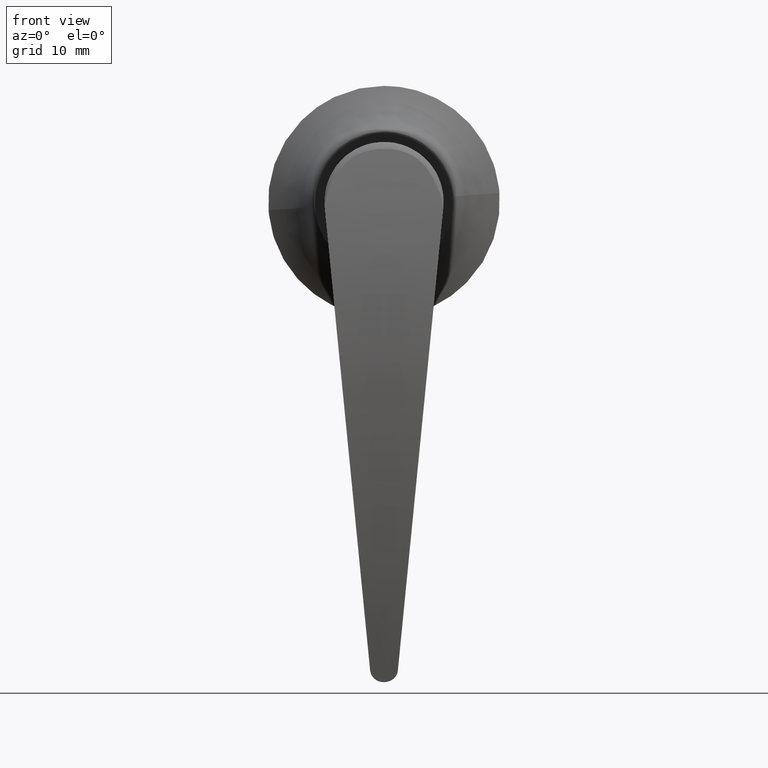
[diagram: clean part render]
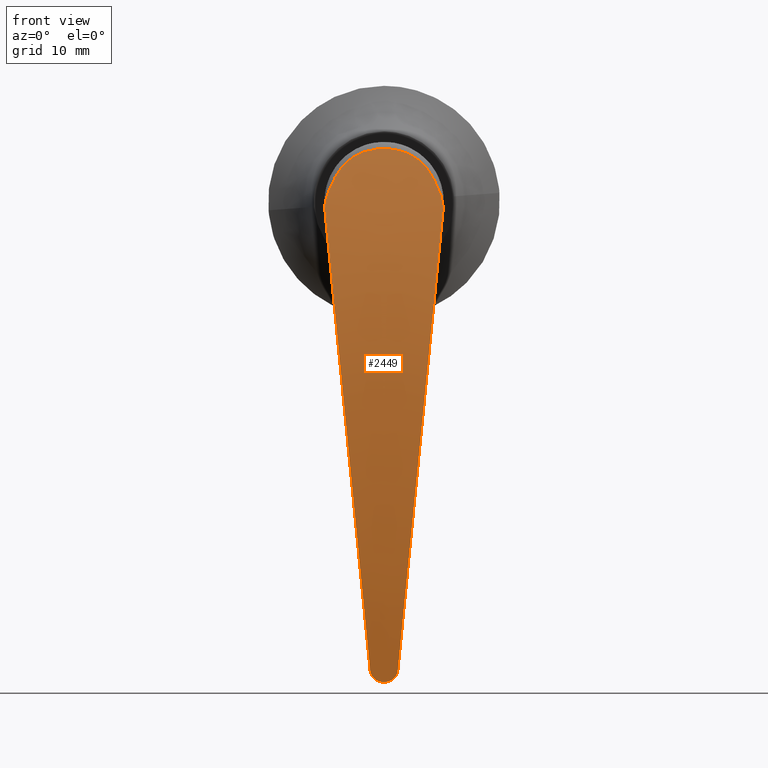
[diagram: same view with one face highlighted and labeled with its STEP entity id]
A machine part, front view. The second image highlights one B-rep face of the part: STEP entity #2449.
In plain terms, the highlighted face is a freeform B-spline surface patch.
Its self-contained STEP definition (entity closure, byte-faithful):
#1877=CARTESIAN_POINT('',(-8.464671061967419,-24.302046395629901,-0.774365080495115));
#1878=VERTEX_POINT('',#1877);
#1919=CARTESIAN_POINT('',(8.459299963339769,-24.314094698093101,-0.831000373267871));
#1920=VERTEX_POINT('',#1919);
#1921=CARTESIAN_POINT('',(8.459299963339779,-24.314094698093040,-0.831000373267865));
#1922=CARTESIAN_POINT('',(8.458411691496904,-24.311575122384170,-0.819146599249248));
#1923=CARTESIAN_POINT('',(8.456632368058438,-24.306528086220940,-0.795401956080829));
#1924=CARTESIAN_POINT('',(8.453690252281072,-24.298934511043100,-0.759752262363911));
#1925=CARTESIAN_POINT('',(8.450542905953103,-24.291309100233072,-0.724008692006169));
#1926=CARTESIAN_POINT('',(8.447170551477443,-24.283650930729920,-0.688172870250530));
#1927=CARTESIAN_POINT('',(8.443578127624631,-24.275960115001389,-0.652244392714695));
#1928=CARTESIAN_POINT('',(8.439763917117162,-24.268236486209300,-0.616223401620088));
#1929=CARTESIAN_POINT('',(8.435727992858435,-24.260479952194171,-0.580109892208347));
#1930=CARTESIAN_POINT('',(8.431469943919586,-24.252690400169261,-0.543903899478592));
#1931=CARTESIAN_POINT('',(8.426989487803875,-24.244867722379801,-0.507605447910497));
#1932=CARTESIAN_POINT('',(8.422286305593520,-24.237011809192911,-0.471214565002356));
#1933=CARTESIAN_POINT('',(8.417360086339302,-24.229122550957140,-0.434731277626651));
#1934=CARTESIAN_POINT('',(8.412210515108484,-24.221199837500290,-0.398155613012325));
#1935=CARTESIAN_POINT('',(8.406837276204058,-24.213243558263461,-0.361487598481028));
#1936=CARTESIAN_POINT('',(8.401240052299322,-24.205253602263880,-0.324727261519402));
#1937=CARTESIAN_POINT('',(8.395418524669248,-24.197229858103078,-0.287874629759125));
#1938=CARTESIAN_POINT('',(8.389372373138777,-24.189172213965289,-0.250929730988340));
#1939=CARTESIAN_POINT('',(8.383101276061145,-24.181080557609832,-0.213892593130009));
#1940=CARTESIAN_POINT('',(8.376604910461623,-24.172954776397319,-0.176763244321687));
#1941=CARTESIAN_POINT('',(8.369882951485648,-24.164794757185899,-0.139541712620821));
#1942=CARTESIAN_POINT('',(8.362935074477273,-24.156600386716200,-0.102228027113332));
#1943=CARTESIAN_POINT('',(8.355760947183363,-24.148371550161770,-0.064822213758062));
#1944=CARTESIAN_POINT('',(8.348360259005428,-24.140108136562500,-0.027324310977246));
#1945=CARTESIAN_POINT('',(8.340732611177749,-24.131810018352489,0.010265689203754));
#1946=CARTESIAN_POINT('',(8.321281617131538,-24.111174814684428,0.103579587259843));
#1947=CARTESIAN_POINT('',(8.287286778060645,-24.077764204406598,0.253826418508463));
#1948=CARTESIAN_POINT('',(8.234256346180372,-24.031112806224900,0.461705095016636));
#1949=CARTESIAN_POINT('',(8.174301861232600,-23.983164262304118,0.673445216869652));
#1950=CARTESIAN_POINT('',(8.089241658201743,-23.920585822086711,0.947348329087076));
#1951=CARTESIAN_POINT('',(7.970971477887364,-23.841924623933270,1.287459388776844));
#1952=CARTESIAN_POINT('',(7.842365110277219,-23.764690902087072,1.616410807461109));
#1953=CARTESIAN_POINT('',(7.731427425007401,-23.702079630692179,1.880321551242589));
#1954=CARTESIAN_POINT('',(7.620144194872872,-23.641457175207449,2.134189301109605));
#1955=CARTESIAN_POINT('',(7.475490078562974,-23.566089359589231,2.446870914185568));
#1956=CARTESIAN_POINT('',(7.329484134776391,-23.492819076650459,2.747448000123776));
#1957=CARTESIAN_POINT('',(7.209099636098563,-23.433401869849749,2.989376334259918));
#1958=CARTESIAN_POINT('',(7.137549114356703,-23.398324208522219,3.131496300447547));
#1959=CARTESIAN_POINT('',(7.080059384161454,-23.370223266887969,3.244956711865966));
#1960=CARTESIAN_POINT('',(7.044254360224246,-23.352737837066901,3.315424370657823));
#1961=CARTESIAN_POINT('',(7.012753607000596,-23.337367571503862,3.377252594117639));
#1962=CARTESIAN_POINT('',(6.984620706433557,-23.323662862865429,3.432306357448358));
#1963=CARTESIAN_POINT('',(6.959281567122982,-23.311442527781370,3.481337552885001));
#1964=CARTESIAN_POINT('',(6.924848712335746,-23.295104340354619,3.546804125643295));
#1965=CARTESIAN_POINT('',(6.883918226516429,-23.276170830294291,3.622541649706123));
#1966=CARTESIAN_POINT('',(6.834780780334524,-23.254047044575149,3.710853715666563));
#1967=CARTESIAN_POINT('',(6.784493742246850,-23.232031646893489,3.798552149009215));
#1968=CARTESIAN_POINT('',(6.681641192487474,-23.188213765184731,3.972751071742376));
#1969=CARTESIAN_POINT('',(6.519085005845323,-23.123449282763769,4.228958150311113));
#1970=CARTESIAN_POINT('',(6.285383609650068,-23.039643980599500,4.558194057719937));
#1971=CARTESIAN_POINT('',(6.035687457408742,-22.958762776241620,4.874003177979358));
#1972=CARTESIAN_POINT('',(5.770267965307534,-22.880964750990952,5.176149115604660));
#1973=CARTESIAN_POINT('',(5.489399238258570,-22.806410993627530,5.464341760382415));
#1974=CARTESIAN_POINT('',(5.192762990143693,-22.735185303545681,5.738555079209068));
#1975=CARTESIAN_POINT('',(4.881890525335344,-22.667772211113490,5.997185517328003));
#1976=CARTESIAN_POINT('',(4.611358593531225,-22.615026554027811,6.198945194061772));
#1977=CARTESIAN_POINT('',(4.389487806451990,-22.575190618605951,6.351045098461867));
#1978=CARTESIAN_POINT('',(4.247794728838668,-22.551153697416339,6.442718175834238));
#1979=CARTESIAN_POINT('',(4.133890052077800,-22.532631395188819,6.513304835463315));
#1980=CARTESIAN_POINT('',(4.019139613256521,-22.514555332488570,6.582157219878405));
#1981=CARTESIAN_POINT('',(3.817250840994292,-22.484575424312130,6.696271982382317));
#1982=CARTESIAN_POINT('',(3.517486485231421,-22.445074643194129,6.846436580533600));
#1983=CARTESIAN_POINT('',(3.147207307088030,-22.403751121470350,7.003325443718985));
#1984=CARTESIAN_POINT('',(2.765589566593091,-22.368009857379739,7.138882529892252));
#1985=CARTESIAN_POINT('',(2.252323337383046,-22.328416784933921,7.288929027416774));
#1986=CARTESIAN_POINT('',(1.730962041582074,-22.299915813882400,7.396836355696955));
#1987=CARTESIAN_POINT('',(1.206193152671715,-22.281015212063370,7.468369240720851));
#1988=CARTESIAN_POINT('',(0.813572262162764,-22.271305166912729,7.505110319255011));
#1989=CARTESIAN_POINT('',(0.415566430174570,-22.265580889209058,7.526767212696905));
#1990=CARTESIAN_POINT('',(0.017296626021364,-22.263614459641900,7.534206375157171));
#1991=CARTESIAN_POINT('',(-0.379865712700055,-22.265074380656500,7.528683394201169));
#1992=CARTESIAN_POINT('',(-0.775788730633699,-22.270193285531629,7.509317123311621));
#1993=CARTESIAN_POINT('',(-1.167146330202244,-22.279282754895512,7.474924951950704));
#1994=CARTESIAN_POINT('',(-1.562439502112025,-22.292938646870539,7.423244051838846));
#1995=CARTESIAN_POINT('',(-1.953969139995402,-22.311397304979710,7.353366102204670));
#1996=CARTESIAN_POINT('',(-2.346534878103340,-22.335305106329489,7.262820694376311));
#1997=CARTESIAN_POINT('',(-2.731313740318662,-22.364420039601491,7.152490876519529));
#1998=CARTESIAN_POINT('',(-3.111476143873492,-22.399358139878171,7.019993262109874));
#1999=CARTESIAN_POINT('',(-3.480603947866617,-22.439898230298851,6.866099358947480));
#2000=CARTESIAN_POINT('',(-3.780546770604659,-22.478869142867762,6.717974276547948));
#2001=CARTESIAN_POINT('',(-3.983002633328487,-22.508548156508240,6.605027395401744));
#2002=CARTESIAN_POINT('',(-4.098530285889127,-22.526524451612190,6.536569574681659));
#2003=CARTESIAN_POINT('',(-4.213483335342295,-22.544996682603159,6.466189243367184));
#2004=CARTESIAN_POINT('',(-4.356689432731659,-22.569020557218540,6.374587123694274));
#2005=CARTESIAN_POINT('',(-4.579916094080739,-22.608693196178489,6.223147599849050));
#2006=CARTESIAN_POINT('',(-4.851169982347170,-22.661022586016951,6.023034729808120));
#2007=CARTESIAN_POINT('',(-5.162288250235594,-22.727727391476449,5.767207305995151));
#2008=CARTESIAN_POINT('',(-5.459158276605393,-22.798205885208208,5.495982384673358));
#2009=CARTESIAN_POINT('',(-5.772743114644800,-22.880504236095842,5.178010495614414));
#2010=CARTESIAN_POINT('',(-6.096677488803498,-22.975967362801740,4.807202023407669));
#2011=CARTESIAN_POINT('',(-6.421945075208600,-23.085652182780290,4.377995503893909));
#2012=CARTESIAN_POINT('',(-6.655370314342915,-23.176007564964031,4.021312111375029));
#2013=CARTESIAN_POINT('',(-6.814845872932678,-23.244022361292458,3.750897119855118));
#2014=CARTESIAN_POINT('',(-6.888699726604290,-23.277262217721709,3.618205181877658));
#2015=CARTESIAN_POINT('',(-6.938269281762931,-23.300448821510660,3.525393558680244));
#2016=CARTESIAN_POINT('',(-6.962778079310710,-23.312096708743749,3.478711547535899));
#2017=CARTESIAN_POINT('',(-6.989783476588665,-23.325061482901528,3.426692133152358));
#2018=CARTESIAN_POINT('',(-7.021847704615945,-23.340488701816401,3.364713931769756));
#2019=CARTESIAN_POINT('',(-7.059039005233410,-23.358398833595569,3.292626728043821));
#2020=CARTESIAN_POINT('',(-7.118903124062483,-23.387253844220719,3.176258276966208));
#2021=CARTESIAN_POINT('',(-7.191867383426299,-23.422534944705632,3.033481466743566));
#2022=CARTESIAN_POINT('',(-7.284408765317258,-23.467592172862989,2.850248707071766));
#2023=CARTESIAN_POINT('',(-7.372020821196017,-23.510760405271331,2.673824220260483));
#2024=CARTESIAN_POINT('',(-7.462620805308629,-23.556077182726881,2.487627403581026));
#2025=CARTESIAN_POINT('',(-7.549719024973610,-23.600523498131320,2.303988801461136));
#2026=CARTESIAN_POINT('',(-7.636970364948101,-23.646165020499492,2.114301015718084));
#2027=CARTESIAN_POINT('',(-7.720942403924699,-23.691434738845860,1.925008563758541));
#2028=CARTESIAN_POINT('',(-7.833408267979425,-23.754060996965709,1.661441564495187));
#2029=CARTESIAN_POINT('',(-7.964033986827551,-23.831098942310291,1.333849858347459));
#2030=CARTESIAN_POINT('',(-8.084045934036169,-23.909310027056069,0.996307084826468));
#2031=CARTESIAN_POINT('',(-8.170362495740678,-23.971451519142001,0.724877922577580));
#2032=CARTESIAN_POINT('',(-8.231540027367856,-24.019241660314378,0.514299018594144));
#2033=CARTESIAN_POINT('',(-8.285793303214767,-24.065761683348889,0.307484840492434));
#2034=CARTESIAN_POINT('',(-8.323146912724448,-24.101441094398481,0.147425695748882));
#2035=CARTESIAN_POINT('',(-8.347445896355962,-24.126694079675620,0.033433862524267));
#2036=CARTESIAN_POINT('',(-8.361439558070687,-24.141926568419318,-0.035544741385872));
#2037=CARTESIAN_POINT('',(-8.374659909636836,-24.157043716961720,-0.104219635027526));
#2038=CARTESIAN_POINT('',(-8.387109169808831,-24.172046287970499,-0.172590741451703));
#2039=CARTESIAN_POINT('',(-8.398789319017343,-24.186934952945979,-0.240657863242870));
#2040=CARTESIAN_POINT('',(-8.409702411011427,-24.201710402728381,-0.308420833327073));
#2041=CARTESIAN_POINT('',(-8.419850345572201,-24.216373312543801,-0.375879488670505));
#2042=CARTESIAN_POINT('',(-8.429235464091891,-24.230924372983161,-0.443033629950745));
#2043=CARTESIAN_POINT('',(-8.437858412005603,-24.245364201666241,-0.509883207237275));
#2044=CARTESIAN_POINT('',(-8.445726027292716,-24.259693663105480,-0.576427623446925));
#2045=CARTESIAN_POINT('',(-8.452822166014437,-24.273912687485460,-0.642668313311890));
#2046=CARTESIAN_POINT('',(-8.459215627891085,-24.288024640024489,-0.708599202082427));
#2047=CARTESIAN_POINT('',(-8.462856058269333,-24.297381406993370,-0.752485004697291));
#2048=CARTESIAN_POINT('',(-8.464671061949796,-24.302046395668128,-0.774365080674550));
#2049=B_SPLINE_CURVE_WITH_KNOTS('',3,(#1921,#1922,#1923,#1924,#1925,#1926,#1927,#1928,#1929,#1930,#1931,#1932,#1933,#1934,#1935,#1936,#1937,#1938,#1939,#1940,#1941,#1942,#1943,#1944,#1945,#1946,#1947,#1948,#1949,#1950,#1951,#1952,#1953,#1954,#1955,#1956,#1957,#1958,#1959,#1960,#1961,#1962,#1963,#1964,#1965,#1966,#1967,#1968,#1969,#1970,#1971,#1972,#1973,#1974,#1975,#1976,#1977,#1978,#1979,#1980,#1981,#1982,#1983,#1984,#1985,#1986,#1987,#1988,#1989,#1990,#1991,#1992,#1993,#1994,#1995,#1996,#1997,#1998,#1999,#2000,#2001,#2002,#2003,#2004,#2005,#2006,#2007,#2008,#2009,#2010,#2011,#2012,#2013,#2014,#2015,#2016,#2017,#2018,#2019,#2020,#2021,#2022,#2023,#2024,#2025,#2026,#2027,#2028,#2029,#2030,#2031,#2032,#2033,#2034,#2035,#2036,#2037,#2038,#2039,#2040,#2041,#2042,#2043,#2044,#2045,#2046,#2047,#2048),.UNSPECIFIED.,.F.,.U.,(4,1,1,1,1,1,1,1,1,1,1,1,1,1,1,1,1,1,1,1,1,1,1,1,1,1,1,1,1,1,1,1,1,1,1,1,1,1,1,1,1,1,1,1,1,1,1,1,1,1,1,1,1,1,1,1,1,1,1,1,1,1,1,1,1,1,1,1,1,1,1,1,1,1,1,1,1,1,1,1,1,1,1,1,1,1,1,1,1,1,1,1,1,1,1,1,1,1,1,1,1,1,1,1,1,1,1,1,1,1,1,1,1,1,1,1,1,1,1,1,1,1,1,1,1,4),(0.0,0.001373404056698,0.002751106036030,0.004133153157457,0.005519592406833,0.006910470536184,0.008305834063578,0.009705729273070,0.011110202214745,0.012519298704820,0.013933064325846,0.015351544426969,0.016774784124274,0.018202828301198,0.019635721609018,0.021073508467398,0.022516233065012,0.023963939360225,0.025416671081841,0.026874471729903,0.028337384576562,0.029805452666996,0.031278718820384,0.032757225631365,0.034241015512672,0.042302001320778,0.050570769972519,0.059053503816988,0.067756152485915,0.083747532078622,0.100701609552656,0.108611428882244,0.116868879696344,0.132770775089945,0.148468950748374,0.155534236599715,0.164043206614545,0.166885069339708,0.170257335705340,0.173193144932762,0.174918188821926,0.177414921617898,0.179582363948811,0.183480219951194,0.187377677822321,0.191275375732129,0.195173953159391,0.210772722468020,0.226326102812251,0.241761652353536,0.257165946429505,0.272604670146292,0.287999495104795,0.303508161700191,0.318921421960683,0.326587202876022,0.334241145347745,0.338186193101144,0.341876815278001,0.349503431918668,0.364611278818041,0.380003720993826,0.395166558639723,0.410535111881235,0.440582232294564,0.455303755671196,0.470422992151701,0.485151478124943,0.500350125762307,0.515437449684139,0.530037518904710,0.545147111196309,0.559840408692798,0.575108053109690,0.590128820024643,0.605435595184218,0.620446529016209,0.635777405809994,0.650839408149657,0.658482572314575,0.662189417417867,0.666152326566595,0.673859236661361,0.681591996881230,0.696966207828970,0.712395380497111,0.727717997361215,0.743087583657180,0.763700782451058,0.784358963177349,0.805159710071141,0.812910166305013,0.820663488861005,0.822728094991264,0.825088140774242,0.826766462634346,0.829512938544847,0.833165775816397,0.836155586161028,0.844659434583392,0.851722102214800,0.859909628560898,0.867451816463294,0.875680249466051,0.883424475621685,0.891607787105498,0.899638096498000,0.916577219883769,0.932401124548516,0.941071617013775,0.949524410598745,0.957765455343087,0.965800932193709,0.968531632255313,0.971244652119470,0.973940261826287,0.976618733645466,0.979280342444269,0.981925365717591,0.984554083600814,0.987166778880102,0.989763736999992,0.992345246068129,0.994911596857028,0.997463082802696,1.0),.UNSPECIFIED.);
#2050=EDGE_CURVE('',#1920,#1878,#2049,.T.);
#2254=CARTESIAN_POINT('',(7.620498207931520,-25.792836138036300,-9.371534410270161));
#2255=VERTEX_POINT('',#2254);
#2256=CARTESIAN_POINT('',(8.459299963339769,-24.314094698093101,-0.831000373267871));
#2257=CARTESIAN_POINT('',(8.181517861090104,-24.914976190542980,-3.659329574818797));
#2258=CARTESIAN_POINT('',(7.901794630984370,-25.400608278618382,-6.507423003635585));
#2259=CARTESIAN_POINT('',(7.620498207931520,-25.792836138036300,-9.371534410270161));
#2260=QUASI_UNIFORM_CURVE('',3,(#2256,#2257,#2258,#2259),.UNSPECIFIED.,.F.,.U.);
#2261=EDGE_CURVE('',#1920,#2255,#2260,.T.);
#2285=CARTESIAN_POINT('',(-0.034166847823589,-20.319431241990451,-68.498832455563104));
#2286=VERTEX_POINT('',#2285);
#2287=CARTESIAN_POINT('',(0.033241794971791,-20.319431241990451,-68.498832455563004));
#2288=VERTEX_POINT('',#2287);
#2289=CARTESIAN_POINT('',(-0.034166847823589,-20.319431241990451,-68.498832455563104));
#2290=CARTESIAN_POINT('',(0.033241794971791,-20.319431241990451,-68.498832455563004));
#2291=QUASI_UNIFORM_CURVE('',1,(#2289,#2290),.UNSPECIFIED.,.F.,.U.);
#2292=EDGE_CURVE('',#2286,#2288,#2291,.T.);
#2313=CARTESIAN_POINT('',(-9.539346692361285,-22.070685594886790,8.263261983127295));
#2314=CARTESIAN_POINT('',(-3.179614385851289,-22.070685594886790,8.263261983127295));
#2315=CARTESIAN_POINT('',(3.180117920658714,-22.070685594886790,8.263261983127295));
#2316=CARTESIAN_POINT('',(9.539850227168707,-22.070685594886790,8.263261983127295));
#2317=CARTESIAN_POINT('',(-9.264284211604704,-22.798008690290509,5.517278448720906));
#2318=CARTESIAN_POINT('',(-3.087945106099518,-22.798008690290509,5.517278448720903));
#2319=CARTESIAN_POINT('',(3.088393999405670,-22.798008690290519,5.517278448720905));
#2320=CARTESIAN_POINT('',(9.264733104910862,-22.798008690290509,5.517278448720906));
#2321=CARTESIAN_POINT('',(-8.611959408520916,-24.515065655101299,-0.994962564397116));
#2322=CARTESIAN_POINT('',(-2.870546700113981,-24.515065655101299,-0.994962564397116));
#2323=CARTESIAN_POINT('',(2.870866008292932,-24.515065655101299,-0.994962564397116));
#2324=CARTESIAN_POINT('',(8.612278716699860,-24.515065655101299,-0.994962564397116));
#2325=CARTESIAN_POINT('',(-7.614416338868598,-26.141494470990779,-10.953561194759100));
#2326=CARTESIAN_POINT('',(-2.538098397950519,-26.141494470990779,-10.953561194759100));
#2327=CARTESIAN_POINT('',(2.538219542967580,-26.141494470990779,-10.953561194759100));
#2328=CARTESIAN_POINT('',(7.614537483885663,-26.141494470990779,-10.953561194759100));
#2329=CARTESIAN_POINT('',(-6.559768079763735,-27.032042305420799,-21.482248153905900));
#2330=CARTESIAN_POINT('',(-2.186618813974986,-27.032042305420799,-21.482248153905900));
#2331=CARTESIAN_POINT('',(2.186530451813741,-27.032042305420799,-21.482248153905900));
#2332=CARTESIAN_POINT('',(6.559679717602502,-27.032042305420799,-21.482248153905900));
#2333=CARTESIAN_POINT('',(-5.553114770371129,-27.079876721847850,-31.531795459829201));
#2334=CARTESIAN_POINT('',(-1.851134368484892,-27.079876721847850,-31.531795459829191));
#2335=CARTESIAN_POINT('',(1.850846033401355,-27.079876721847850,-31.531795459829201));
#2336=CARTESIAN_POINT('',(5.552826435287591,-27.079876721847850,-31.531795459829201));
#2337=CARTESIAN_POINT('',(-4.558021118086680,-26.401114350651351,-41.465941246813351));
#2338=CARTESIAN_POINT('',(-1.519502376584104,-26.401114350651351,-41.465941246813351));
#2339=CARTESIAN_POINT('',(1.519016364918475,-26.401114350651351,-41.465941246813351));
#2340=CARTESIAN_POINT('',(4.557535106421053,-26.401114350651351,-41.465941246813351));
#2341=CARTESIAN_POINT('',(-3.516183875848468,-24.769819006044539,-51.866734204284477));
#2342=CARTESIAN_POINT('',(-1.172292283256030,-24.769819006044539,-51.866734204284477));
#2343=CARTESIAN_POINT('',(1.171599309336408,-24.769819006044539,-51.866734204284477));
#2344=CARTESIAN_POINT('',(3.515490901928844,-24.769819006044539,-51.866734204284477));
#2345=CARTESIAN_POINT('',(-2.770704847481961,-23.199113941073659,-59.308945630245091));
#2346=CARTESIAN_POINT('',(-0.923848637243536,-23.199113941073659,-59.308945630245077));
#2347=CARTESIAN_POINT('',(0.923007572994894,-23.199113941073669,-59.308945630245077));
#2348=CARTESIAN_POINT('',(2.769863783233320,-23.199113941073659,-59.308945630245091));
#2349=CARTESIAN_POINT('',(-2.027227267304988,-20.868300261851079,-66.731176345792804));
#2350=CARTESIAN_POINT('',(-0.676072008097496,-20.868300261851068,-66.731176345792761));
#2351=CARTESIAN_POINT('',(0.675083251109994,-20.868300261851079,-66.731176345792790));
#2352=CARTESIAN_POINT('',(2.026238510317489,-20.868300261851079,-66.731176345792804));
#2353=CARTESIAN_POINT('',(-1.750372818523788,-20.009542810738360,-69.495049323631420));
#2354=CARTESIAN_POINT('',(-0.583805524329739,-20.009542810738360,-69.495049323631406));
#2355=CARTESIAN_POINT('',(0.582761769864306,-20.009542810738360,-69.495049323631264));
#2356=CARTESIAN_POINT('',(1.749329064058357,-20.009542810738360,-69.495049323631278));
#2357=B_SPLINE_SURFACE_WITH_KNOTS('',3,3,((#2313,#2317,#2321,#2325,#2329,#2333,#2337,#2341,#2345,#2349,#2353),(#2314,#2318,#2322,#2326,#2330,#2334,#2338,#2342,#2346,#2350,#2354),(#2315,#2319,#2323,#2327,#2331,#2335,#2339,#2343,#2347,#2351,#2355),(#2316,#2320,#2324,#2328,#2332,#2336,#2340,#2344,#2348,#2352,#2356)),.UNSPECIFIED.,.F.,.F.,.U.,(4,4),(4,1,1,1,1,1,1,1,4),(0.0,19.079196919529998),(0.0,11.781881384492850,27.934552101593319,41.851614826469742,55.736411116046121,69.656125912705775,83.697962919117700,97.948931019582034,106.671214742899810),.UNSPECIFIED.);
#2358=CARTESIAN_POINT('',(-1.975050344627980,-20.829342320301201,-66.857613967089605));
#2359=VERTEX_POINT('',#2358);
#2360=CARTESIAN_POINT('',(-8.464671061967417,-24.302046395629912,-0.774365080495108));
#2361=CARTESIAN_POINT('',(-8.116429278596707,-25.057431689044741,-4.320481170409343));
#2362=CARTESIAN_POINT('',(-7.439236428620014,-26.163715814034170,-11.216277642715021));
#2363=CARTESIAN_POINT('',(-6.431079958780740,-27.032042305420799,-21.482248153905900));
#2364=CARTESIAN_POINT('',(-5.444177052291961,-27.079876721847850,-31.531795459829201));
#2365=CARTESIAN_POINT('',(-4.468607003989420,-26.401114350651351,-41.465941246813351));
#2366=CARTESIAN_POINT('',(-3.447210457502485,-24.769818950899651,-51.866734318288508));
#2367=CARTESIAN_POINT('',(-2.771098955954249,-23.316761742218610,-58.751519512671642));
#2368=CARTESIAN_POINT('',(-2.159377318407099,-21.411088308397620,-64.980628267106738));
#2369=CARTESIAN_POINT('',(-1.975050344627975,-20.829342320301190,-66.857613967089605));
#2370=B_SPLINE_CURVE_WITH_KNOTS('',3,(#2360,#2361,#2362,#2363,#2364,#2365,#2366,#2367,#2368,#2369),.UNSPECIFIED.,.F.,.U.,(4,1,1,1,1,1,1,4),(0.124741804745628,0.266825446176739,0.398161814584562,0.529193682213912,0.660555078422762,0.793068951116620,0.927556409685384,0.983705595328273),.UNSPECIFIED.);
#2371=EDGE_CURVE('',#1878,#2359,#2370,.T.);
#2372=ORIENTED_EDGE('',*,*,#2371,.T.);
#2373=CARTESIAN_POINT('',(-1.975050344627975,-20.829342320301201,-66.857613967089605));
#2374=CARTESIAN_POINT('',(-1.963884312200202,-20.794101712621071,-66.971316713696822));
#2375=CARTESIAN_POINT('',(-1.941416202760530,-20.759738814554328,-67.082101137552101));
#2376=CARTESIAN_POINT('',(-1.891531514016684,-20.709461652894699,-67.244102511403227));
#2377=CARTESIAN_POINT('',(-1.872187704628185,-20.692915241538120,-67.297402320173859));
#2378=CARTESIAN_POINT('',(-1.827980968834311,-20.660256440868320,-67.402578519268204));
#2379=CARTESIAN_POINT('',(-1.802975333480798,-20.644075227649061,-67.454676376035366));
#2380=CARTESIAN_POINT('',(-1.721075250729381,-20.597139676353791,-67.605762568394766));
#2381=CARTESIAN_POINT('',(-1.657131261884719,-20.567732529584781,-67.700384753450336));
#2382=CARTESIAN_POINT('',(-1.547611876214821,-20.526372368363290,-67.833437248095436));
#2383=CARTESIAN_POINT('',(-1.508823417441044,-20.513047023099421,-67.876298299934533));
#2384=CARTESIAN_POINT('',(-1.426572237345027,-20.487342565867589,-67.958969225737860));
#2385=CARTESIAN_POINT('',(-1.383607965400376,-20.475122994187380,-67.998265990733074));
#2386=CARTESIAN_POINT('',(-1.250022104064848,-20.440469180650801,-68.109701601419559));
#2387=CARTESIAN_POINT('',(-1.154484400059753,-20.419941998225671,-68.175700791884211));
#2388=CARTESIAN_POINT('',(-1.001540878960592,-20.392984454593911,-68.262370955128972));
#2389=CARTESIAN_POINT('',(-0.948671119536101,-20.384606485511149,-68.289305769952961));
#2390=CARTESIAN_POINT('',(-0.841343992955239,-20.369414616874309,-68.338146209148690));
#2391=CARTESIAN_POINT('',(-0.786846316164621,-20.362582588984200,-68.360110118531708));
#2392=CARTESIAN_POINT('',(-0.620925263029397,-20.344310424483169,-68.418851849644682));
#2393=CARTESIAN_POINT('',(-0.507093481909480,-20.335076257797180,-68.448537451134897));
#2394=CARTESIAN_POINT('',(-0.331448000921539,-20.325711481800791,-68.478642993103051));
#2395=CARTESIAN_POINT('',(-0.272102624833627,-20.323350863194459,-68.486231814349452));
#2396=CARTESIAN_POINT('',(-0.153431586504429,-20.320217075605861,-68.496306189446699));
#2397=CARTESIAN_POINT('',(-0.093898569539042,-20.319431241990451,-68.498832455562990));
#2398=CARTESIAN_POINT('',(-0.034166847823591,-20.319431241990451,-68.498832455563004));
#2399=B_SPLINE_CURVE_WITH_KNOTS('',3,(#2373,#2374,#2375,#2376,#2377,#2378,#2379,#2380,#2381,#2382,#2383,#2384,#2385,#2386,#2387,#2388,#2389,#2390,#2391,#2392,#2393,#2394,#2395,#2396,#2397,#2398),.UNSPECIFIED.,.F.,.U.,(4,2,2,2,2,2,2,2,2,2,2,2,4),(0.0,0.125000000000007,0.187500000000010,0.250000000000012,0.375000000000005,0.437500000000001,0.499999999999997,0.624999999999990,0.687499999999990,0.749999999999990,0.874999999999995,0.937499999999997,1.0),.UNSPECIFIED.);
#2400=EDGE_CURVE('',#2359,#2286,#2399,.T.);
#2401=ORIENTED_EDGE('',*,*,#2400,.T.);
#2402=ORIENTED_EDGE('',*,*,#2292,.T.);
#2403=CARTESIAN_POINT('',(1.974043988760170,-20.829332160195001,-66.857646748360082));
#2404=VERTEX_POINT('',#2403);
#2405=CARTESIAN_POINT('',(0.033241794971791,-20.319431241990451,-68.498832455563004));
#2406=CARTESIAN_POINT('',(0.152793786137221,-20.319431241990451,-68.498832455562990));
#2407=CARTESIAN_POINT('',(0.270565234617213,-20.322559614781159,-68.488775500132746));
#2408=CARTESIAN_POINT('',(0.444647799613636,-20.331775681211411,-68.459148025266529));
#2409=CARTESIAN_POINT('',(0.502243494974650,-20.335606408877570,-68.446833135059336));
#2410=CARTESIAN_POINT('',(0.616554831405547,-20.344814059797269,-68.417232573078593));
#2411=CARTESIAN_POINT('',(0.673517031527938,-20.350218998782580,-68.399856840565349));
#2412=CARTESIAN_POINT('',(0.841210574146502,-20.368651572487000,-68.340599430411302));
#2413=CARTESIAN_POINT('',(0.947780492475835,-20.383735571244230,-68.292106630863884));
#2414=CARTESIAN_POINT('',(1.099947423970228,-20.410472940225230,-68.206144422651505));
#2415=CARTESIAN_POINT('',(1.149380463712835,-20.420074861930029,-68.175272846904065));
#2416=CARTESIAN_POINT('',(1.245594644392334,-20.440696382805388,-68.108968360283058));
#2417=CARTESIAN_POINT('',(1.292598469174577,-20.451779329763681,-68.073331741908220));
#2418=CARTESIAN_POINT('',(1.426967414051320,-20.486603226965482,-67.961349278558984));
#2419=CARTESIAN_POINT('',(1.508247842327428,-20.511969126930101,-67.879771001596723));
#2420=CARTESIAN_POINT('',(1.617809577947091,-20.553213581549642,-67.747091288187306));
#2421=CARTESIAN_POINT('',(1.652257556188092,-20.567497616760569,-67.701135328064495));
#2422=CARTESIAN_POINT('',(1.716859955676322,-20.597174388942530,-67.605640397753390));
#2423=CARTESIAN_POINT('',(1.746966275394735,-20.612567660481371,-67.556099564149008));
#2424=CARTESIAN_POINT('',(1.828795267554420,-20.659406041797052,-67.405326487055888));
#2425=CARTESIAN_POINT('',(1.872853403031323,-20.691829573934069,-67.300915033998749));
#2426=CARTESIAN_POINT('',(1.939923840916215,-20.759064621652922,-67.084274444447871));
#2427=CARTESIAN_POINT('',(1.962866460334652,-20.794062200044451,-66.971444183079257));
#2428=CARTESIAN_POINT('',(1.974043988760170,-20.829332160195001,-66.857646748360082));
#2429=B_SPLINE_CURVE_WITH_KNOTS('',3,(#2405,#2406,#2407,#2408,#2409,#2410,#2411,#2412,#2413,#2414,#2415,#2416,#2417,#2418,#2419,#2420,#2421,#2422,#2423,#2424,#2425,#2426,#2427,#2428),.UNSPECIFIED.,.F.,.U.,(4,2,2,2,2,2,2,2,2,2,2,4),(0.0,0.125000000000006,0.187500000000008,0.250000000000009,0.375000000000013,0.437500000000014,0.500000000000015,0.625000000000018,0.687500000000020,0.750000000000021,0.875000000000011,1.0),.UNSPECIFIED.);
#2430=EDGE_CURVE('',#2288,#2404,#2429,.T.);
#2431=ORIENTED_EDGE('',*,*,#2430,.T.);
#2432=CARTESIAN_POINT('',(7.620498207931520,-25.792836138036300,-9.371534410270161));
#2433=CARTESIAN_POINT('',(7.550892178608330,-25.889884213894291,-10.080187981009800));
#2434=CARTESIAN_POINT('',(7.154999246085732,-26.408528711736800,-14.110743138223450));
#2435=CARTESIAN_POINT('',(6.430948478421267,-27.032033944644169,-21.482247721895739));
#2436=CARTESIAN_POINT('',(5.443852509401205,-27.079870190638388,-31.531795122354708));
#2437=CARTESIAN_POINT('',(4.468091621614240,-26.401109639308039,-41.465941003373267));
#2438=CARTESIAN_POINT('',(3.446495278819832,-24.769816159248350,-51.866734174040957));
#2439=CARTESIAN_POINT('',(2.770250841555097,-23.316758757295862,-58.751526398605229));
#2440=CARTESIAN_POINT('',(2.158408138167414,-21.411081422275721,-64.980649610714394));
#2441=CARTESIAN_POINT('',(1.974043988760170,-20.829332160195001,-66.857646748360082));
#2442=B_SPLINE_CURVE_WITH_KNOTS('',3,(#2432,#2433,#2434,#2435,#2436,#2437,#2438,#2439,#2440,#2441),.UNSPECIFIED.,.F.,.U.,(4,1,1,1,1,1,1,4),(0.238776050726686,0.266825446176739,0.398161814584562,0.529193682213912,0.660555078422762,0.793068951116620,0.927556409685384,0.983705922207233),.UNSPECIFIED.);
#2443=EDGE_CURVE('',#2255,#2404,#2442,.T.);
#2444=ORIENTED_EDGE('',*,*,#2443,.F.);
#2445=ORIENTED_EDGE('',*,*,#2261,.F.);
#2446=ORIENTED_EDGE('',*,*,#2050,.T.);
#2447=EDGE_LOOP('',(#2372,#2401,#2402,#2431,#2444,#2445,#2446));
#2448=FACE_OUTER_BOUND('',#2447,.T.);
#2449=ADVANCED_FACE('',(#2448),#2357,.F.);